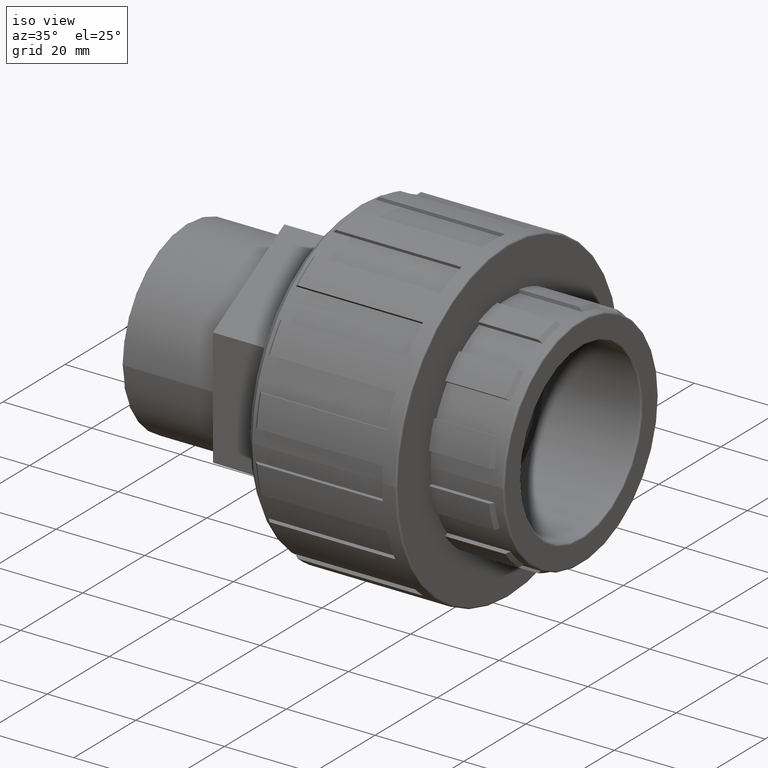
[diagram: clean part render]
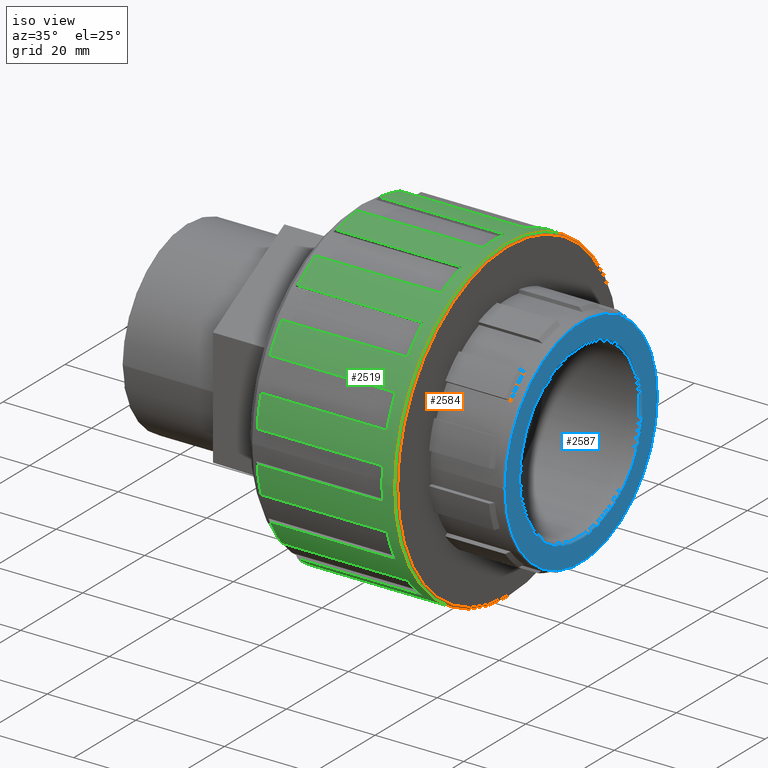
[diagram: same view with three faces highlighted in distinct colors, each labeled with its STEP entity id]
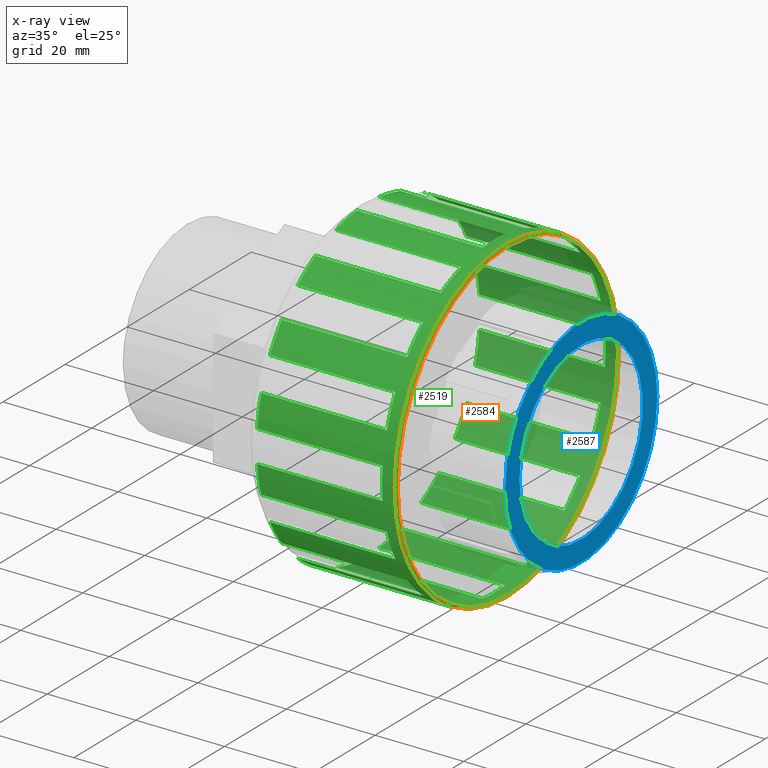
[diagram: x-ray of the same camera — body ghosted, the three highlighted faces saturated]
A machine part, iso view with three faces highlighted in distinct colors.
The next image is the same camera in x-ray (body ghosted, the three faces saturated) — at least one of them is partly hidden behind the body in this view.
Their STEP definitions:

[orange] entity #2584 — the highlighted toroidal blend (fillet) surface has major radius 35.6105 mm and minor (blend) radius 0.3895 mm.
#15=TOROIDAL_SURFACE('',#2826,35.61048,0.38952);
#50=FACE_BOUND('',#480,.T.);
#138=CIRCLE('',#2709,36.);
#191=CIRCLE('',#2827,35.61048);
#338=FACE_OUTER_BOUND('',#479,.T.);
#479=EDGE_LOOP('',(#2161));
#480=EDGE_LOOP('',(#2162));
#1144=VERTEX_POINT('',#4043);
#1243=VERTEX_POINT('',#4358);
#1450=EDGE_CURVE('',#1144,#1144,#138,.T.);
#1601=EDGE_CURVE('',#1243,#1243,#191,.T.);
#2161=ORIENTED_EDGE('',*,*,#1601,.T.);
#2162=ORIENTED_EDGE('',*,*,#1450,.T.);
#2584=ADVANCED_FACE('',(#338,#50),#15,.T.);
#2709=AXIS2_PLACEMENT_3D('',#4044,#3221,#3222);
#2826=AXIS2_PLACEMENT_3D('',#4357,#3553,#3554);
#2827=AXIS2_PLACEMENT_3D('',#4359,#3555,#3556);
#3221=DIRECTION('center_axis',(1.,1.83697019872103E-16,0.));
#3222=DIRECTION('ref_axis',(-1.83109700241996E-16,1.,6.12323399573677E-17));
#3553=DIRECTION('center_axis',(-1.,-1.83697019872103E-16,0.));
#3554=DIRECTION('ref_axis',(0.,0.,1.));
#3555=DIRECTION('center_axis',(-1.,-1.83697019872103E-16,0.));
#3556=DIRECTION('ref_axis',(-1.83697019872103E-16,1.,6.12323399573677E-17));
#4043=CARTESIAN_POINT('',(27.61048,-36.,-6.61309271539571E-15));
#4044=CARTESIAN_POINT('Origin',(27.61048,1.32464802775469E-14,0.));
#4357=CARTESIAN_POINT('Origin',(27.61048,1.32464802775469E-14,0.));
#4358=CARTESIAN_POINT('',(28.,-35.61048,2.18051301740504E-15));
#4359=CARTESIAN_POINT('Origin',(28.,1.33180339407275E-14,0.));

[blue] entity #2587 — the highlighted planar face has unit normal (1, 0, 0).
#53=FACE_BOUND('',#486,.T.);
#205=CIRCLE('',#2843,19.86552);
#206=CIRCLE('',#2845,24.53976);
#341=FACE_OUTER_BOUND('',#485,.T.);
#485=EDGE_LOOP('',(#2214));
#486=EDGE_LOOP('',(#2215));
#1246=VERTEX_POINT('',#4378);
#1247=VERTEX_POINT('',#4381);
#1616=EDGE_CURVE('',#1246,#1246,#205,.T.);
#1617=EDGE_CURVE('',#1247,#1247,#206,.T.);
#2214=ORIENTED_EDGE('',*,*,#1617,.F.);
#2215=ORIENTED_EDGE('',*,*,#1616,.F.);
#2458=PLANE('',#2844);
#2587=ADVANCED_FACE('',(#341,#53),#2458,.T.);
#2843=AXIS2_PLACEMENT_3D('',#4379,#3588,#3589);
#2844=AXIS2_PLACEMENT_3D('',#4380,#3590,#3591);
#2845=AXIS2_PLACEMENT_3D('',#4382,#3592,#3593);
#3588=DIRECTION('center_axis',(1.,1.83697019872103E-16,0.));
#3589=DIRECTION('ref_axis',(-1.83697019872103E-16,1.,6.12323399573677E-17));
#3590=DIRECTION('center_axis',(1.,1.83697019872103E-16,0.));
#3591=DIRECTION('ref_axis',(0.,0.,-1.));
#3592=DIRECTION('center_axis',(-1.,-1.83697019872103E-16,0.));
#3593=DIRECTION('ref_axis',(-1.83697019872103E-16,1.,6.12323399573677E-17));
#4378=CARTESIAN_POINT('',(44.5,-19.86552,-3.64923682220966E-15));
#4379=CARTESIAN_POINT('Origin',(44.5,1.63490347686172E-14,0.));
#4380=CARTESIAN_POINT('Origin',(44.5,-24.92928,0.));
#4381=CARTESIAN_POINT('',(44.5,-24.53976,1.50262692679221E-15));
#4382=CARTESIAN_POINT('Origin',(44.5,1.63490347686172E-14,0.));

[green] entity #2519 — the highlighted cylindrical surface (bore or boss wall) has radius 36 mm, axis along (-1, -0, 0).
#49=FACE_BOUND('',#414,.T.);
#71=CYLINDRICAL_SURFACE('',#2691,36.);
#92=CIRCLE('',#2620,36.);
#94=CIRCLE('',#2625,36.);
#96=CIRCLE('',#2630,36.);
#98=CIRCLE('',#2635,36.);
#100=CIRCLE('',#2640,36.);
#102=CIRCLE('',#2645,36.);
#104=CIRCLE('',#2650,36.);
#106=CIRCLE('',#2655,36.);
#108=CIRCLE('',#2660,36.);
#110=CIRCLE('',#2665,36.);
#112=CIRCLE('',#2670,36.);
#114=CIRCLE('',#2675,36.);
#116=CIRCLE('',#2680,36.);
#118=CIRCLE('',#2685,36.);
#120=CIRCLE('',#2690,36.);
#121=CIRCLE('',#2692,36.);
#122=CIRCLE('',#2693,36.);
#123=CIRCLE('',#2694,36.);
#124=CIRCLE('',#2695,36.);
#125=CIRCLE('',#2696,36.);
#126=CIRCLE('',#2697,36.);
#127=CIRCLE('',#2698,36.);
#128=CIRCLE('',#2699,36.);
#129=CIRCLE('',#2700,36.);
#130=CIRCLE('',#2701,36.);
#131=CIRCLE('',#2702,36.);
#132=CIRCLE('',#2703,36.);
#133=CIRCLE('',#2704,36.);
#134=CIRCLE('',#2705,36.);
#135=CIRCLE('',#2706,36.);
#136=CIRCLE('',#2707,36.);
#137=CIRCLE('',#2708,36.);
#138=CIRCLE('',#2709,36.);
#273=FACE_OUTER_BOUND('',#413,.T.);
#413=EDGE_LOOP('',(#1840,#1841,#1842,#1843,#1844,#1845,#1846,#1847,#1848,
#1849,#1850,#1851,#1852,#1853,#1854,#1855,#1856,#1857,#1858,#1859,#1860,
#1861,#1862,#1863,#1864,#1865,#1866,#1867,#1868,#1869,#1870,#1871,#1872,
#1873,#1874,#1875,#1876,#1877,#1878,#1879,#1880,#1881,#1882,#1883,#1884,
#1885,#1886,#1887,#1888,#1889,#1890,#1891,#1892,#1893,#1894,#1895,#1896,
#1897,#1898,#1899,#1900,#1901,#1902,#1903));
#414=EDGE_LOOP('',(#1904));
#543=LINE('',#3709,#785);
#549=LINE('',#3721,#791);
#551=LINE('',#3730,#793);
#557=LINE('',#3742,#799);
#559=LINE('',#3751,#801);
#565=LINE('',#3763,#807);
#567=LINE('',#3772,#809);
#573=LINE('',#3784,#815);
#575=LINE('',#3793,#817);
#581=LINE('',#3805,#823);
#583=LINE('',#3814,#825);
#589=LINE('',#3826,#831);
#591=LINE('',#3835,#833);
#597=LINE('',#3847,#839);
#599=LINE('',#3856,#841);
#605=LINE('',#3868,#847);
#607=LINE('',#3877,#849);
#613=LINE('',#3889,#855);
#615=LINE('',#3898,#857);
#621=LINE('',#3910,#863);
#623=LINE('',#3919,#865);
#629=LINE('',#3931,#871);
#631=LINE('',#3940,#873);
#637=LINE('',#3952,#879);
#639=LINE('',#3961,#881);
#645=LINE('',#3973,#887);
#647=LINE('',#3982,#889);
#653=LINE('',#3994,#895);
#655=LINE('',#4003,#897);
#661=LINE('',#4015,#903);
#662=LINE('',#4037,#904);
#663=LINE('',#4041,#905);
#785=VECTOR('',#2916,28.35);
#791=VECTOR('',#2924,28.35);
#793=VECTOR('',#2934,28.35);
#799=VECTOR('',#2942,28.35);
#801=VECTOR('',#2952,28.35);
#807=VECTOR('',#2960,28.35);
#809=VECTOR('',#2970,28.35);
#815=VECTOR('',#2978,28.35);
#817=VECTOR('',#2988,28.35);
#823=VECTOR('',#2996,28.35);
#825=VECTOR('',#3006,28.35);
#831=VECTOR('',#3014,28.35);
#833=VECTOR('',#3024,28.35);
#839=VECTOR('',#3032,28.35);
#841=VECTOR('',#3042,28.35);
#847=VECTOR('',#3050,28.35);
#849=VECTOR('',#3060,28.35);
#855=VECTOR('',#3068,28.35);
#857=VECTOR('',#3078,28.35);
#863=VECTOR('',#3086,28.35);
#865=VECTOR('',#3096,28.35);
#871=VECTOR('',#3104,28.35);
#873=VECTOR('',#3114,28.35);
#879=VECTOR('',#3122,28.35);
#881=VECTOR('',#3132,28.35);
#887=VECTOR('',#3140,28.35);
#889=VECTOR('',#3150,28.35);
#895=VECTOR('',#3158,28.35);
#897=VECTOR('',#3168,28.35);
#903=VECTOR('',#3176,28.35);
#904=VECTOR('',#3215,28.35);
#905=VECTOR('',#3218,28.35);
#1020=VERTEX_POINT('',#3705);
#1022=VERTEX_POINT('',#3708);
#1025=VERTEX_POINT('',#3715);
#1027=VERTEX_POINT('',#3719);
#1028=VERTEX_POINT('',#3726);
#1030=VERTEX_POINT('',#3729);
#1033=VERTEX_POINT('',#3736);
#1035=VERTEX_POINT('',#3740);
#1036=VERTEX_POINT('',#3747);
#1038=VERTEX_POINT('',#3750);
#1041=VERTEX_POINT('',#3757);
#1043=VERTEX_POINT('',#3761);
#1044=VERTEX_POINT('',#3768);
#1046=VERTEX_POINT('',#3771);
#1049=VERTEX_POINT('',#3778);
#1051=VERTEX_POINT('',#3782);
#1052=VERTEX_POINT('',#3789);
#1054=VERTEX_POINT('',#3792);
#1057=VERTEX_POINT('',#3799);
#1059=VERTEX_POINT('',#3803);
#1060=VERTEX_POINT('',#3810);
#1062=VERTEX_POINT('',#3813);
#1065=VERTEX_POINT('',#3820);
#1067=VERTEX_POINT('',#3824);
#1068=VERTEX_POINT('',#3831);
#1070=VERTEX_POINT('',#3834);
#1073=VERTEX_POINT('',#3841);
#1075=VERTEX_POINT('',#3845);
#1076=VERTEX_POINT('',#3852);
#1078=VERTEX_POINT('',#3855);
#1081=VERTEX_POINT('',#3862);
#1083=VERTEX_POINT('',#3866);
#1084=VERTEX_POINT('',#3873);
#1086=VERTEX_POINT('',#3876);
#1089=VERTEX_POINT('',#3883);
#1091=VERTEX_POINT('',#3887);
#1092=VERTEX_POINT('',#3894);
#1094=VERTEX_POINT('',#3897);
#1097=VERTEX_POINT('',#3904);
#1099=VERTEX_POINT('',#3908);
#1100=VERTEX_POINT('',#3915);
#1102=VERTEX_POINT('',#3918);
#1105=VERTEX_POINT('',#3925);
#1107=VERTEX_POINT('',#3929);
#1108=VERTEX_POINT('',#3936);
#1110=VERTEX_POINT('',#3939);
#1113=VERTEX_POINT('',#3946);
#1115=VERTEX_POINT('',#3950);
#1116=VERTEX_POINT('',#3957);
#1118=VERTEX_POINT('',#3960);
#1121=VERTEX_POINT('',#3967);
#1123=VERTEX_POINT('',#3971);
#1124=VERTEX_POINT('',#3978);
#1126=VERTEX_POINT('',#3981);
#1129=VERTEX_POINT('',#3988);
#1131=VERTEX_POINT('',#3992);
#1132=VERTEX_POINT('',#3999);
#1134=VERTEX_POINT('',#4002);
#1137=VERTEX_POINT('',#4009);
#1139=VERTEX_POINT('',#4013);
#1140=VERTEX_POINT('',#4034);
#1141=VERTEX_POINT('',#4036);
#1142=VERTEX_POINT('',#4038);
#1143=VERTEX_POINT('',#4040);
#1144=VERTEX_POINT('',#4043);
#1282=EDGE_CURVE('',#1022,#1020,#543,.T.);
#1288=EDGE_CURVE('',#1025,#1027,#549,.T.);
#1290=EDGE_CURVE('',#1027,#1022,#92,.T.);
#1292=EDGE_CURVE('',#1030,#1028,#551,.T.);
#1298=EDGE_CURVE('',#1033,#1035,#557,.T.);
#1300=EDGE_CURVE('',#1035,#1030,#94,.T.);
#1302=EDGE_CURVE('',#1038,#1036,#559,.T.);
#1308=EDGE_CURVE('',#1041,#1043,#565,.T.);
#1310=EDGE_CURVE('',#1043,#1038,#96,.T.);
#1312=EDGE_CURVE('',#1046,#1044,#567,.T.);
#1318=EDGE_CURVE('',#1049,#1051,#573,.T.);
#1320=EDGE_CURVE('',#1051,#1046,#98,.T.);
#1322=EDGE_CURVE('',#1054,#1052,#575,.T.);
#1328=EDGE_CURVE('',#1057,#1059,#581,.T.);
#1330=EDGE_CURVE('',#1059,#1054,#100,.T.);
#1332=EDGE_CURVE('',#1062,#1060,#583,.T.);
#1338=EDGE_CURVE('',#1065,#1067,#589,.T.);
#1340=EDGE_CURVE('',#1067,#1062,#102,.T.);
#1342=EDGE_CURVE('',#1070,#1068,#591,.T.);
#1348=EDGE_CURVE('',#1073,#1075,#597,.T.);
#1350=EDGE_CURVE('',#1075,#1070,#104,.T.);
#1352=EDGE_CURVE('',#1078,#1076,#599,.T.);
#1358=EDGE_CURVE('',#1081,#1083,#605,.T.);
#1360=EDGE_CURVE('',#1083,#1078,#106,.T.);
#1362=EDGE_CURVE('',#1086,#1084,#607,.T.);
#1368=EDGE_CURVE('',#1089,#1091,#613,.T.);
#1370=EDGE_CURVE('',#1091,#1086,#108,.T.);
#1372=EDGE_CURVE('',#1094,#1092,#615,.T.);
#1378=EDGE_CURVE('',#1097,#1099,#621,.T.);
#1380=EDGE_CURVE('',#1099,#1094,#110,.T.);
#1382=EDGE_CURVE('',#1102,#1100,#623,.T.);
#1388=EDGE_CURVE('',#1105,#1107,#629,.T.);
#1390=EDGE_CURVE('',#1107,#1102,#112,.T.);
#1392=EDGE_CURVE('',#1110,#1108,#631,.T.);
#1398=EDGE_CURVE('',#1113,#1115,#637,.T.);
#1400=EDGE_CURVE('',#1115,#1110,#114,.T.);
#1402=EDGE_CURVE('',#1118,#1116,#639,.T.);
#1408=EDGE_CURVE('',#1121,#1123,#645,.T.);
#1410=EDGE_CURVE('',#1123,#1118,#116,.T.);
#1412=EDGE_CURVE('',#1126,#1124,#647,.T.);
#1418=EDGE_CURVE('',#1129,#1131,#653,.T.);
#1420=EDGE_CURVE('',#1131,#1126,#118,.T.);
#1422=EDGE_CURVE('',#1134,#1132,#655,.T.);
#1428=EDGE_CURVE('',#1137,#1139,#661,.T.);
#1430=EDGE_CURVE('',#1139,#1134,#120,.T.);
#1431=EDGE_CURVE('',#1033,#1020,#121,.T.);
#1432=EDGE_CURVE('',#1041,#1028,#122,.T.);
#1433=EDGE_CURVE('',#1049,#1036,#123,.T.);
#1434=EDGE_CURVE('',#1057,#1044,#124,.T.);
#1435=EDGE_CURVE('',#1065,#1052,#125,.T.);
#1436=EDGE_CURVE('',#1073,#1060,#126,.T.);
#1437=EDGE_CURVE('',#1081,#1068,#127,.T.);
#1438=EDGE_CURVE('',#1089,#1076,#128,.T.);
#1439=EDGE_CURVE('',#1097,#1084,#129,.T.);
#1440=EDGE_CURVE('',#1105,#1092,#130,.T.);
#1441=EDGE_CURVE('',#1113,#1100,#131,.T.);
#1442=EDGE_CURVE('',#1121,#1108,#132,.T.);
#1443=EDGE_CURVE('',#1129,#1116,#133,.T.);
#1444=EDGE_CURVE('',#1137,#1124,#134,.T.);
#1445=EDGE_CURVE('',#1140,#1132,#135,.T.);
#1446=EDGE_CURVE('',#1140,#1141,#662,.T.);
#1447=EDGE_CURVE('',#1141,#1142,#136,.T.);
#1448=EDGE_CURVE('',#1142,#1143,#663,.T.);
#1449=EDGE_CURVE('',#1025,#1143,#137,.T.);
#1450=EDGE_CURVE('',#1144,#1144,#138,.T.);
#1840=ORIENTED_EDGE('',*,*,#1288,.T.);
#1841=ORIENTED_EDGE('',*,*,#1290,.T.);
#1842=ORIENTED_EDGE('',*,*,#1282,.T.);
#1843=ORIENTED_EDGE('',*,*,#1431,.F.);
#1844=ORIENTED_EDGE('',*,*,#1298,.T.);
#1845=ORIENTED_EDGE('',*,*,#1300,.T.);
#1846=ORIENTED_EDGE('',*,*,#1292,.T.);
#1847=ORIENTED_EDGE('',*,*,#1432,.F.);
#1848=ORIENTED_EDGE('',*,*,#1308,.T.);
#1849=ORIENTED_EDGE('',*,*,#1310,.T.);
#1850=ORIENTED_EDGE('',*,*,#1302,.T.);
#1851=ORIENTED_EDGE('',*,*,#1433,.F.);
#1852=ORIENTED_EDGE('',*,*,#1318,.T.);
#1853=ORIENTED_EDGE('',*,*,#1320,.T.);
#1854=ORIENTED_EDGE('',*,*,#1312,.T.);
#1855=ORIENTED_EDGE('',*,*,#1434,.F.);
#1856=ORIENTED_EDGE('',*,*,#1328,.T.);
#1857=ORIENTED_EDGE('',*,*,#1330,.T.);
#1858=ORIENTED_EDGE('',*,*,#1322,.T.);
#1859=ORIENTED_EDGE('',*,*,#1435,.F.);
#1860=ORIENTED_EDGE('',*,*,#1338,.T.);
#1861=ORIENTED_EDGE('',*,*,#1340,.T.);
#1862=ORIENTED_EDGE('',*,*,#1332,.T.);
#1863=ORIENTED_EDGE('',*,*,#1436,.F.);
#1864=ORIENTED_EDGE('',*,*,#1348,.T.);
#1865=ORIENTED_EDGE('',*,*,#1350,.T.);
#1866=ORIENTED_EDGE('',*,*,#1342,.T.);
#1867=ORIENTED_EDGE('',*,*,#1437,.F.);
#1868=ORIENTED_EDGE('',*,*,#1358,.T.);
#1869=ORIENTED_EDGE('',*,*,#1360,.T.);
#1870=ORIENTED_EDGE('',*,*,#1352,.T.);
#1871=ORIENTED_EDGE('',*,*,#1438,.F.);
#1872=ORIENTED_EDGE('',*,*,#1368,.T.);
#1873=ORIENTED_EDGE('',*,*,#1370,.T.);
#1874=ORIENTED_EDGE('',*,*,#1362,.T.);
#1875=ORIENTED_EDGE('',*,*,#1439,.F.);
#1876=ORIENTED_EDGE('',*,*,#1378,.T.);
#1877=ORIENTED_EDGE('',*,*,#1380,.T.);
#1878=ORIENTED_EDGE('',*,*,#1372,.T.);
#1879=ORIENTED_EDGE('',*,*,#1440,.F.);
#1880=ORIENTED_EDGE('',*,*,#1388,.T.);
#1881=ORIENTED_EDGE('',*,*,#1390,.T.);
#1882=ORIENTED_EDGE('',*,*,#1382,.T.);
#1883=ORIENTED_EDGE('',*,*,#1441,.F.);
#1884=ORIENTED_EDGE('',*,*,#1398,.T.);
#1885=ORIENTED_EDGE('',*,*,#1400,.T.);
#1886=ORIENTED_EDGE('',*,*,#1392,.T.);
#1887=ORIENTED_EDGE('',*,*,#1442,.F.);
#1888=ORIENTED_EDGE('',*,*,#1408,.T.);
#1889=ORIENTED_EDGE('',*,*,#1410,.T.);
#1890=ORIENTED_EDGE('',*,*,#1402,.T.);
#1891=ORIENTED_EDGE('',*,*,#1443,.F.);
#1892=ORIENTED_EDGE('',*,*,#1418,.T.);
#1893=ORIENTED_EDGE('',*,*,#1420,.T.);
#1894=ORIENTED_EDGE('',*,*,#1412,.T.);
#1895=ORIENTED_EDGE('',*,*,#1444,.F.);
#1896=ORIENTED_EDGE('',*,*,#1428,.T.);
#1897=ORIENTED_EDGE('',*,*,#1430,.T.);
#1898=ORIENTED_EDGE('',*,*,#1422,.T.);
#1899=ORIENTED_EDGE('',*,*,#1445,.F.);
#1900=ORIENTED_EDGE('',*,*,#1446,.T.);
#1901=ORIENTED_EDGE('',*,*,#1447,.T.);
#1902=ORIENTED_EDGE('',*,*,#1448,.T.);
#1903=ORIENTED_EDGE('',*,*,#1449,.F.);
#1904=ORIENTED_EDGE('',*,*,#1450,.F.);
#2519=ADVANCED_FACE('',(#273,#49),#71,.T.);
#2620=AXIS2_PLACEMENT_3D('',#3724,#2929,#2930);
#2625=AXIS2_PLACEMENT_3D('',#3745,#2947,#2948);
#2630=AXIS2_PLACEMENT_3D('',#3766,#2965,#2966);
#2635=AXIS2_PLACEMENT_3D('',#3787,#2983,#2984);
#2640=AXIS2_PLACEMENT_3D('',#3808,#3001,#3002);
#2645=AXIS2_PLACEMENT_3D('',#3829,#3019,#3020);
#2650=AXIS2_PLACEMENT_3D('',#3850,#3037,#3038);
#2655=AXIS2_PLACEMENT_3D('',#3871,#3055,#3056);
#2660=AXIS2_PLACEMENT_3D('',#3892,#3073,#3074);
#2665=AXIS2_PLACEMENT_3D('',#3913,#3091,#3092);
#2670=AXIS2_PLACEMENT_3D('',#3934,#3109,#3110);
#2675=AXIS2_PLACEMENT_3D('',#3955,#3127,#3128);
#2680=AXIS2_PLACEMENT_3D('',#3976,#3145,#3146);
#2685=AXIS2_PLACEMENT_3D('',#3997,#3163,#3164);
#2690=AXIS2_PLACEMENT_3D('',#4018,#3181,#3182);
#2691=AXIS2_PLACEMENT_3D('',#4019,#3183,#3184);
#2692=AXIS2_PLACEMENT_3D('',#4020,#3185,#3186);
#2693=AXIS2_PLACEMENT_3D('',#4021,#3187,#3188);
#2694=AXIS2_PLACEMENT_3D('',#4022,#3189,#3190);
#2695=AXIS2_PLACEMENT_3D('',#4023,#3191,#3192);
#2696=AXIS2_PLACEMENT_3D('',#4024,#3193,#3194);
#2697=AXIS2_PLACEMENT_3D('',#4025,#3195,#3196);
#2698=AXIS2_PLACEMENT_3D('',#4026,#3197,#3198);
#2699=AXIS2_PLACEMENT_3D('',#4027,#3199,#3200);
#2700=AXIS2_PLACEMENT_3D('',#4028,#3201,#3202);
#2701=AXIS2_PLACEMENT_3D('',#4029,#3203,#3204);
#2702=AXIS2_PLACEMENT_3D('',#4030,#3205,#3206);
#2703=AXIS2_PLACEMENT_3D('',#4031,#3207,#3208);
#2704=AXIS2_PLACEMENT_3D('',#4032,#3209,#3210);
#2705=AXIS2_PLACEMENT_3D('',#4033,#3211,#3212);
#2706=AXIS2_PLACEMENT_3D('',#4035,#3213,#3214);
#2707=AXIS2_PLACEMENT_3D('',#4039,#3216,#3217);
#2708=AXIS2_PLACEMENT_3D('',#4042,#3219,#3220);
#2709=AXIS2_PLACEMENT_3D('',#4044,#3221,#3222);
#2916=DIRECTION('',(-1.,-1.83697019872103E-16,0.));
#2924=DIRECTION('',(1.,1.83697019872103E-16,0.));
#2929=DIRECTION('center_axis',(1.,1.81812799541967E-16,9.47261527755999E-18));
#2930=DIRECTION('ref_axis',(1.58943883267739E-16,-1.,0.));
#2934=DIRECTION('',(-1.,-1.83697019872103E-16,0.));
#2942=DIRECTION('',(1.,1.83697019872103E-16,0.));
#2947=DIRECTION('center_axis',(1.,1.76446994016322E-16,1.75031107485828E-17));
#2948=DIRECTION('ref_axis',(1.58943883267739E-16,-1.,0.));
#2952=DIRECTION('',(-1.,-1.83697019872103E-16,0.));
#2960=DIRECTION('',(1.,1.83697019872103E-16,0.));
#2965=DIRECTION('center_axis',(1.,1.68416498545299E-16,2.28689162742279E-17));
#2966=DIRECTION('ref_axis',(1.58943883267739E-16,-1.,0.));
#2970=DIRECTION('',(-1.,-1.83697019872103E-16,0.));
#2978=DIRECTION('',(1.,1.83697019872103E-16,0.));
#2983=DIRECTION('center_axis',(1.,1.58943883267739E-16,2.4753136604364E-17));
#2984=DIRECTION('ref_axis',(1.58943883267739E-16,-1.,0.));
#2988=DIRECTION('',(-1.,-1.83697019872103E-16,0.));
#2996=DIRECTION('',(1.,1.83697019872103E-16,0.));
#3001=DIRECTION('center_axis',(1.,1.49471267990179E-16,2.28689162742279E-17));
#3002=DIRECTION('ref_axis',(1.58943883267739E-16,-1.,0.));
#3006=DIRECTION('',(-1.,-1.83697019872103E-16,0.));
#3014=DIRECTION('',(1.,1.83697019872103E-16,0.));
#3019=DIRECTION('center_axis',(1.,1.41440772519156E-16,1.75031107485828E-17));
#3020=DIRECTION('ref_axis',(1.58943883267739E-16,-1.,0.));
#3024=DIRECTION('',(-1.,-1.83697019872103E-16,0.));
#3032=DIRECTION('',(1.,1.83697019872103E-16,0.));
#3037=DIRECTION('center_axis',(1.,1.36074966993511E-16,9.47261527755999E-18));
#3038=DIRECTION('ref_axis',(1.58943883267739E-16,-1.,0.));
#3042=DIRECTION('',(-1.,-1.83697019872103E-16,0.));
#3050=DIRECTION('',(1.,1.83697019872103E-16,0.));
#3055=DIRECTION('center_axis',(1.,1.34190746663375E-16,9.24446373305873E-33));
#3056=DIRECTION('ref_axis',(1.58943883267739E-16,-1.,0.));
#3060=DIRECTION('',(-1.,-1.83697019872103E-16,0.));
#3068=DIRECTION('',(1.,1.83697019872103E-16,0.));
#3073=DIRECTION('center_axis',(1.,1.36074966993511E-16,-9.47261527755995E-18));
#3074=DIRECTION('ref_axis',(1.58943883267739E-16,-1.,0.));
#3078=DIRECTION('',(-1.,-1.83697019872103E-16,0.));
#3086=DIRECTION('',(1.,1.83697019872103E-16,0.));
#3091=DIRECTION('center_axis',(1.,1.41440772519156E-16,-1.75031107485828E-17));
#3092=DIRECTION('ref_axis',(1.58943883267739E-16,-1.,0.));
#3096=DIRECTION('',(-1.,-1.83697019872103E-16,0.));
#3104=DIRECTION('',(1.,1.83697019872103E-16,0.));
#3109=DIRECTION('center_axis',(1.,1.49471267990179E-16,-2.28689162742279E-17));
#3110=DIRECTION('ref_axis',(1.58943883267739E-16,-1.,0.));
#3114=DIRECTION('',(-1.,-1.83697019872103E-16,0.));
#3122=DIRECTION('',(1.,1.83697019872103E-16,0.));
#3127=DIRECTION('center_axis',(1.,1.58943883267739E-16,-2.47531366043641E-17));
#3128=DIRECTION('ref_axis',(1.58943883267739E-16,-1.,0.));
#3132=DIRECTION('',(-1.,-1.83697019872103E-16,0.));
#3140=DIRECTION('',(1.,1.83697019872103E-16,0.));
#3145=DIRECTION('center_axis',(1.,1.68416498545299E-16,-2.28689162742279E-17));
#3146=DIRECTION('ref_axis',(1.58943883267739E-16,-1.,0.));
#3150=DIRECTION('',(-1.,-1.83697019872103E-16,0.));
#3158=DIRECTION('',(1.,1.83697019872103E-16,0.));
#3163=DIRECTION('center_axis',(1.,1.76446994016322E-16,-1.75031107485828E-17));
#3164=DIRECTION('ref_axis',(1.58943883267739E-16,-1.,0.));
#3168=DIRECTION('',(-1.,-1.83697019872103E-16,0.));
#3176=DIRECTION('',(1.,1.83697019872103E-16,0.));
#3181=DIRECTION('center_axis',(1.,1.81812799541967E-16,-9.47261527755998E-18));
#3182=DIRECTION('ref_axis',(1.58943883267739E-16,-1.,0.));
#3183=DIRECTION('center_axis',(-1.,-1.83697019872103E-16,0.));
#3184=DIRECTION('ref_axis',(1.58943883267739E-16,-1.,0.));
#3185=DIRECTION('center_axis',(-1.,-1.83697019872103E-16,0.));
#3186=DIRECTION('ref_axis',(1.58943883267739E-16,-1.,0.));
#3187=DIRECTION('center_axis',(-1.,-1.83697019872103E-16,0.));
#3188=DIRECTION('ref_axis',(1.58943883267739E-16,-1.,0.));
#3189=DIRECTION('center_axis',(-1.,-1.83697019872103E-16,0.));
#3190=DIRECTION('ref_axis',(1.58943883267739E-16,-1.,0.));
#3191=DIRECTION('center_axis',(-1.,-1.83697019872103E-16,0.));
#3192=DIRECTION('ref_axis',(1.58943883267739E-16,-1.,0.));
#3193=DIRECTION('center_axis',(-1.,-1.83697019872103E-16,0.));
#3194=DIRECTION('ref_axis',(1.58943883267739E-16,-1.,0.));
#3195=DIRECTION('center_axis',(-1.,-1.83697019872103E-16,0.));
#3196=DIRECTION('ref_axis',(1.58943883267739E-16,-1.,0.));
#3197=DIRECTION('center_axis',(-1.,-1.83697019872103E-16,0.));
#3198=DIRECTION('ref_axis',(1.58943883267739E-16,-1.,0.));
#3199=DIRECTION('center_axis',(-1.,-1.83697019872103E-16,0.));
#3200=DIRECTION('ref_axis',(1.58943883267739E-16,-1.,0.));
#3201=DIRECTION('center_axis',(-1.,-1.83697019872103E-16,0.));
#3202=DIRECTION('ref_axis',(1.58943883267739E-16,-1.,0.));
#3203=DIRECTION('center_axis',(-1.,-1.83697019872103E-16,0.));
#3204=DIRECTION('ref_axis',(1.58943883267739E-16,-1.,0.));
#3205=DIRECTION('center_axis',(-1.,-1.83697019872103E-16,0.));
#3206=DIRECTION('ref_axis',(1.58943883267739E-16,-1.,0.));
#3207=DIRECTION('center_axis',(-1.,-1.83697019872103E-16,0.));
#3208=DIRECTION('ref_axis',(1.58943883267739E-16,-1.,0.));
#3209=DIRECTION('center_axis',(-1.,-1.83697019872103E-16,0.));
#3210=DIRECTION('ref_axis',(1.58943883267739E-16,-1.,0.));
#3211=DIRECTION('center_axis',(-1.,-1.83697019872103E-16,0.));
#3212=DIRECTION('ref_axis',(1.58943883267739E-16,-1.,0.));
#3213=DIRECTION('center_axis',(-1.,-1.83697019872103E-16,0.));
#3214=DIRECTION('ref_axis',(1.58943883267739E-16,-1.,0.));
#3215=DIRECTION('',(1.,1.83697019872103E-16,0.));
#3216=DIRECTION('center_axis',(1.,1.83697019872103E-16,0.));
#3217=DIRECTION('ref_axis',(1.58943883267739E-16,-1.,0.));
#3218=DIRECTION('',(-1.,-1.83697019872103E-16,0.));
#3219=DIRECTION('center_axis',(-1.,-1.83697019872103E-16,0.));
#3220=DIRECTION('ref_axis',(1.58943883267739E-16,-1.,0.));
#3221=DIRECTION('center_axis',(1.,1.83697019872103E-16,0.));
#3222=DIRECTION('ref_axis',(-1.83109700241996E-16,1.,6.12323399573677E-17));
#3705=CARTESIAN_POINT('',(-3.58,31.7152866604377,17.0335137903564));
#3708=CARTESIAN_POINT('',(24.77,31.7152866604377,17.0335137903564));
#3709=CARTESIAN_POINT('',(11.85,31.7152866604377,17.0335137903564));
#3715=CARTESIAN_POINT('',(-3.58,34.4706073734664,10.3815811562752));
#3719=CARTESIAN_POINT('',(24.77,34.4706073734664,10.3815811562752));
#3721=CARTESIAN_POINT('',(11.85,34.4706073734664,10.3815811562752));
#3724=CARTESIAN_POINT('Origin',(24.77,1.27246925665406E-14,0.));
#3726=CARTESIAN_POINT('',(-3.58,22.7826606907749,27.8738295153181));
#3729=CARTESIAN_POINT('',(24.77,22.7826606907749,27.8738295153181));
#3730=CARTESIAN_POINT('',(11.85,22.7826606907749,27.8738295153181));
#3736=CARTESIAN_POINT('',(-3.58,27.8738295153181,22.782660690775));
#3740=CARTESIAN_POINT('',(24.77,27.8738295153181,22.782660690775));
#3742=CARTESIAN_POINT('',(11.85,27.8738295153181,22.782660690775));
#3745=CARTESIAN_POINT('Origin',(24.77,1.27246925665406E-14,0.));
#3747=CARTESIAN_POINT('',(-3.57999999999999,10.3815811562751,34.4706073734664));
#3750=CARTESIAN_POINT('',(24.77,10.3815811562751,34.4706073734664));
#3751=CARTESIAN_POINT('',(11.85,10.3815811562751,34.4706073734664));
#3757=CARTESIAN_POINT('',(-3.58,17.0335137903564,31.7152866604377));
#3761=CARTESIAN_POINT('',(24.77,17.0335137903564,31.7152866604377));
#3763=CARTESIAN_POINT('',(11.85,17.0335137903564,31.7152866604377));
#3766=CARTESIAN_POINT('Origin',(24.77,1.27246925665406E-14,0.));
#3768=CARTESIAN_POINT('',(-3.57999999999999,-3.60000000000003,35.8195477358383));
#3771=CARTESIAN_POINT('',(24.77,-3.60000000000003,35.8195477358383));
#3772=CARTESIAN_POINT('',(11.85,-3.60000000000003,35.8195477358383));
#3778=CARTESIAN_POINT('',(-3.58,3.59999999999997,35.8195477358383));
#3782=CARTESIAN_POINT('',(24.77,3.59999999999997,35.8195477358383));
#3784=CARTESIAN_POINT('',(11.85,3.59999999999997,35.8195477358383));
#3787=CARTESIAN_POINT('Origin',(24.77,1.27246925665406E-14,0.));
#3789=CARTESIAN_POINT('',(-3.57999999999999,-17.0335137903564,31.7152866604377));
#3792=CARTESIAN_POINT('',(24.77,-17.0335137903564,31.7152866604377));
#3793=CARTESIAN_POINT('',(11.85,-17.0335137903564,31.7152866604377));
#3799=CARTESIAN_POINT('',(-3.57999999999999,-10.3815811562752,34.4706073734663));
#3803=CARTESIAN_POINT('',(24.77,-10.3815811562752,34.4706073734663));
#3805=CARTESIAN_POINT('',(11.85,-10.3815811562752,34.4706073734664));
#3808=CARTESIAN_POINT('Origin',(24.77,1.27246925665406E-14,0.));
#3810=CARTESIAN_POINT('',(-3.57999999999999,-27.8738295153181,22.7826606907749));
#3813=CARTESIAN_POINT('',(24.77,-27.8738295153181,22.7826606907749));
#3814=CARTESIAN_POINT('',(11.85,-27.8738295153181,22.7826606907749));
#3820=CARTESIAN_POINT('',(-3.57999999999999,-22.782660690775,27.8738295153181));
#3824=CARTESIAN_POINT('',(24.77,-22.782660690775,27.8738295153181));
#3826=CARTESIAN_POINT('',(11.85,-22.782660690775,27.8738295153181));
#3829=CARTESIAN_POINT('Origin',(24.77,1.27246925665406E-14,0.));
#3831=CARTESIAN_POINT('',(-3.57999999999999,-34.4706073734664,10.3815811562751));
#3834=CARTESIAN_POINT('',(24.77,-34.4706073734663,10.3815811562751));
#3835=CARTESIAN_POINT('',(11.85,-34.4706073734664,10.3815811562751));
#3841=CARTESIAN_POINT('',(-3.57999999999999,-31.7152866604377,17.0335137903564));
#3845=CARTESIAN_POINT('',(24.77,-31.7152866604377,17.0335137903564));
#3847=CARTESIAN_POINT('',(11.85,-31.7152866604377,17.0335137903564));
#3850=CARTESIAN_POINT('Origin',(24.77,1.27246925665406E-14,0.));
#3852=CARTESIAN_POINT('',(-3.57999999999999,-35.8195477358383,-3.60000000000002));
#3855=CARTESIAN_POINT('',(24.77,-35.8195477358383,-3.60000000000002));
#3856=CARTESIAN_POINT('',(11.85,-35.8195477358383,-3.60000000000002));
#3862=CARTESIAN_POINT('',(-3.57999999999999,-35.8195477358383,3.59999999999998));
#3866=CARTESIAN_POINT('',(24.77,-35.8195477358383,3.59999999999998));
#3868=CARTESIAN_POINT('',(11.85,-35.8195477358383,3.59999999999998));
#3871=CARTESIAN_POINT('Origin',(24.77,1.27246925665406E-14,0.));
#3873=CARTESIAN_POINT('',(-3.57999999999999,-31.7152866604377,-17.0335137903564));
#3876=CARTESIAN_POINT('',(24.77,-31.7152866604377,-17.0335137903564));
#3877=CARTESIAN_POINT('',(11.85,-31.7152866604377,-17.0335137903564));
#3883=CARTESIAN_POINT('',(-3.57999999999999,-34.4706073734663,-10.3815811562752));
#3887=CARTESIAN_POINT('',(24.77,-34.4706073734663,-10.3815811562752));
#3889=CARTESIAN_POINT('',(11.85,-34.4706073734663,-10.3815811562752));
#3892=CARTESIAN_POINT('Origin',(24.77,1.27246925665406E-14,0.));
#3894=CARTESIAN_POINT('',(-3.57999999999999,-22.7826606907749,-27.8738295153181));
#3897=CARTESIAN_POINT('',(24.77,-22.7826606907749,-27.8738295153181));
#3898=CARTESIAN_POINT('',(11.85,-22.7826606907749,-27.8738295153181));
#3904=CARTESIAN_POINT('',(-3.57999999999999,-27.8738295153181,-22.782660690775));
#3908=CARTESIAN_POINT('',(24.77,-27.8738295153181,-22.782660690775));
#3910=CARTESIAN_POINT('',(11.85,-27.8738295153181,-22.782660690775));
#3913=CARTESIAN_POINT('Origin',(24.77,1.27246925665406E-14,0.));
#3915=CARTESIAN_POINT('',(-3.57999999999999,-10.3815811562751,-34.4706073734664));
#3918=CARTESIAN_POINT('',(24.77,-10.3815811562751,-34.4706073734664));
#3919=CARTESIAN_POINT('',(11.85,-10.3815811562751,-34.4706073734664));
#3925=CARTESIAN_POINT('',(-3.57999999999999,-17.0335137903564,-31.7152866604377));
#3929=CARTESIAN_POINT('',(24.77,-17.0335137903564,-31.7152866604377));
#3931=CARTESIAN_POINT('',(11.85,-17.0335137903564,-31.7152866604377));
#3934=CARTESIAN_POINT('Origin',(24.77,1.27246925665406E-14,0.));
#3936=CARTESIAN_POINT('',(-3.58,3.60000000000002,-35.8195477358383));
#3939=CARTESIAN_POINT('',(24.77,3.60000000000002,-35.8195477358383));
#3940=CARTESIAN_POINT('',(11.85,3.60000000000002,-35.8195477358383));
#3946=CARTESIAN_POINT('',(-3.57999999999999,-3.59999999999998,-35.8195477358383));
#3950=CARTESIAN_POINT('',(24.77,-3.59999999999998,-35.8195477358383));
#3952=CARTESIAN_POINT('',(11.85,-3.59999999999998,-35.8195477358383));
#3955=CARTESIAN_POINT('Origin',(24.77,1.27246925665406E-14,0.));
#3957=CARTESIAN_POINT('',(-3.57999999999999,17.0335137903564,-31.7152866604377));
#3960=CARTESIAN_POINT('',(24.77,17.0335137903564,-31.7152866604377));
#3961=CARTESIAN_POINT('',(11.85,17.0335137903564,-31.7152866604377));
#3967=CARTESIAN_POINT('',(-3.57999999999999,10.3815811562752,-34.4706073734664));
#3971=CARTESIAN_POINT('',(24.77,10.3815811562752,-34.4706073734664));
#3973=CARTESIAN_POINT('',(11.85,10.3815811562752,-34.4706073734664));
#3976=CARTESIAN_POINT('Origin',(24.77,1.27246925665406E-14,0.));
#3978=CARTESIAN_POINT('',(-3.58,27.8738295153181,-22.7826606907749));
#3981=CARTESIAN_POINT('',(24.77,27.8738295153181,-22.7826606907749));
#3982=CARTESIAN_POINT('',(11.85,27.8738295153181,-22.7826606907749));
#3988=CARTESIAN_POINT('',(-3.58000000000001,22.782660690775,-27.8738295153181));
#3992=CARTESIAN_POINT('',(24.77,22.782660690775,-27.8738295153181));
#3994=CARTESIAN_POINT('',(11.85,22.782660690775,-27.8738295153181));
#3997=CARTESIAN_POINT('Origin',(24.77,1.27246925665406E-14,0.));
#3999=CARTESIAN_POINT('',(-3.58000000000001,34.4706073734664,-10.3815811562752));
#4002=CARTESIAN_POINT('',(24.77,34.4706073734664,-10.3815811562752));
#4003=CARTESIAN_POINT('',(11.85,34.4706073734664,-10.3815811562752));
#4009=CARTESIAN_POINT('',(-3.58,31.7152866604377,-17.0335137903564));
#4013=CARTESIAN_POINT('',(24.77,31.7152866604377,-17.0335137903564));
#4015=CARTESIAN_POINT('',(11.85,31.7152866604377,-17.0335137903564));
#4018=CARTESIAN_POINT('Origin',(24.77,1.27246925665406E-14,0.));
#4019=CARTESIAN_POINT('Origin',(11.85,1.0351327069793E-14,0.));
#4020=CARTESIAN_POINT('Origin',(-3.57999999999999,7.51688205316646E-15,
0.));
#4021=CARTESIAN_POINT('Origin',(-3.57999999999999,7.51688205316646E-15,
0.));
#4022=CARTESIAN_POINT('Origin',(-3.57999999999999,7.51688205316646E-15,
0.));
#4023=CARTESIAN_POINT('Origin',(-3.57999999999999,7.51688205316646E-15,
0.));
#4024=CARTESIAN_POINT('Origin',(-3.57999999999999,7.51688205316646E-15,
0.));
#4025=CARTESIAN_POINT('Origin',(-3.57999999999999,7.51688205316646E-15,
0.));
#4026=CARTESIAN_POINT('Origin',(-3.57999999999999,7.51688205316646E-15,
0.));
#4027=CARTESIAN_POINT('Origin',(-3.57999999999999,7.51688205316646E-15,
0.));
#4028=CARTESIAN_POINT('Origin',(-3.57999999999999,7.51688205316646E-15,
0.));
#4029=CARTESIAN_POINT('Origin',(-3.57999999999999,7.51688205316646E-15,
0.));
#4030=CARTESIAN_POINT('Origin',(-3.57999999999999,7.51688205316646E-15,
0.));
#4031=CARTESIAN_POINT('Origin',(-3.57999999999999,7.51688205316646E-15,
0.));
#4032=CARTESIAN_POINT('Origin',(-3.57999999999999,7.51688205316646E-15,
0.));
#4033=CARTESIAN_POINT('Origin',(-3.57999999999999,7.51688205316646E-15,
0.));
#4034=CARTESIAN_POINT('',(-3.58,35.8195477358383,-3.6));
#4035=CARTESIAN_POINT('Origin',(-3.57999999999999,7.51688205316646E-15,
0.));
#4036=CARTESIAN_POINT('',(24.77,35.8195477358383,-3.6));
#4037=CARTESIAN_POINT('',(11.85,35.8195477358383,-3.6));
#4038=CARTESIAN_POINT('',(24.77,35.8195477358383,3.6));
#4039=CARTESIAN_POINT('Origin',(24.77,1.27246925665406E-14,0.));
#4040=CARTESIAN_POINT('',(-3.58,35.8195477358383,3.6));
#4041=CARTESIAN_POINT('',(11.85,35.8195477358383,3.6));
#4042=CARTESIAN_POINT('Origin',(-3.57999999999999,7.51688205316646E-15,
0.));
#4043=CARTESIAN_POINT('',(27.61048,-36.,-6.61309271539571E-15));
#4044=CARTESIAN_POINT('Origin',(27.61048,1.32464802775469E-14,0.));